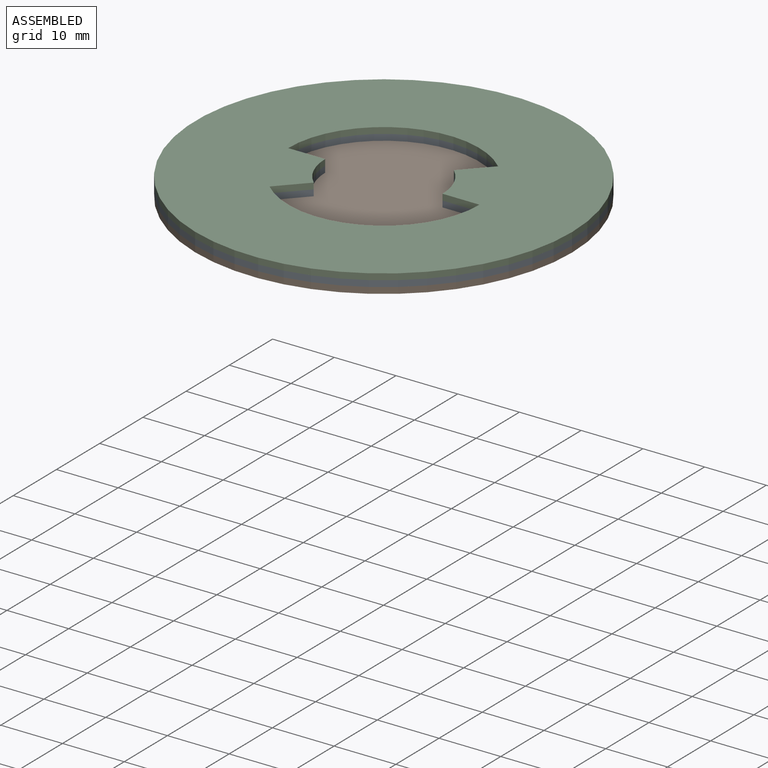
[diagram: assembled view]
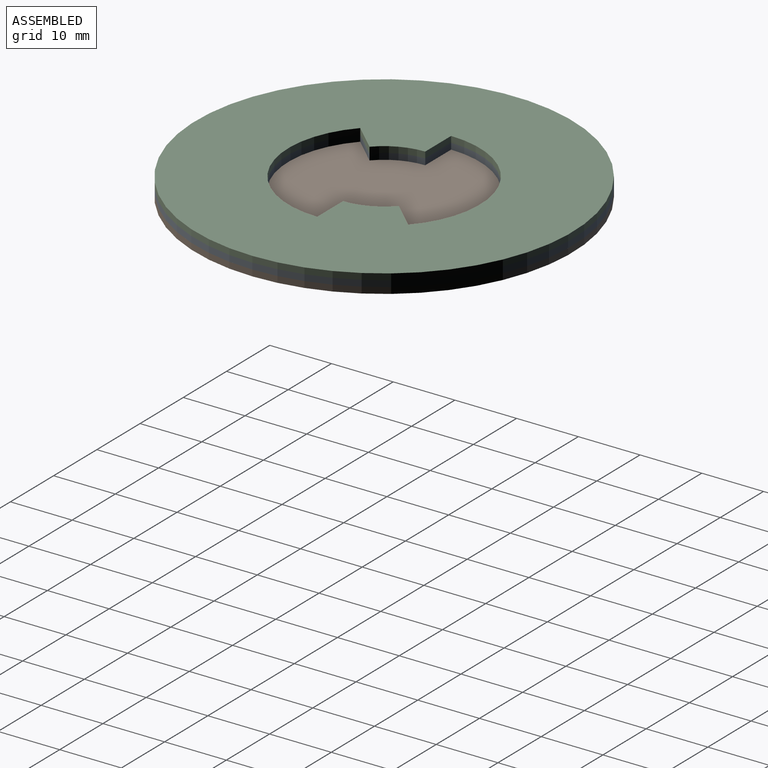
[diagram: assembled view, second angle]
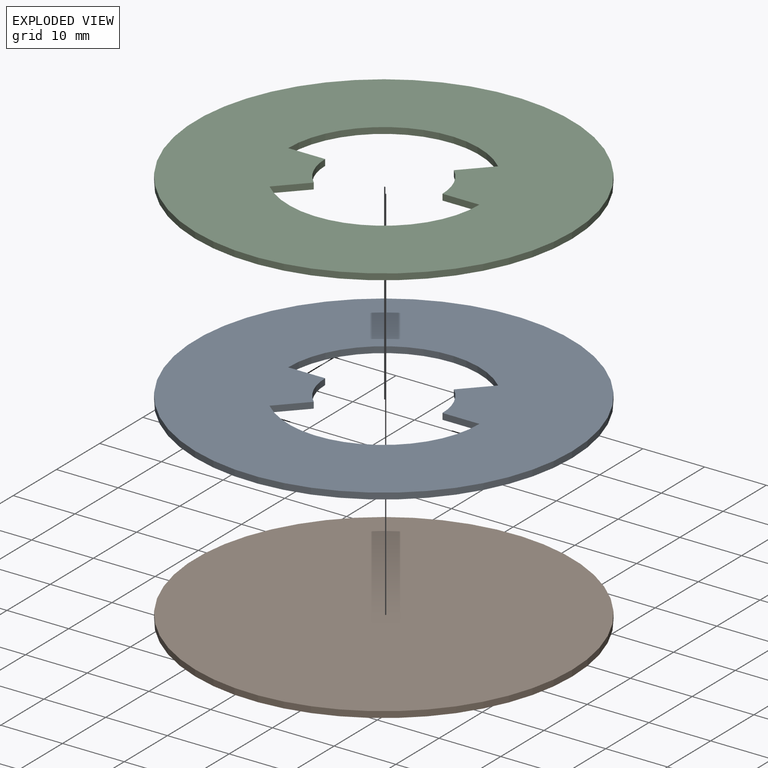
[diagram: exploded view]
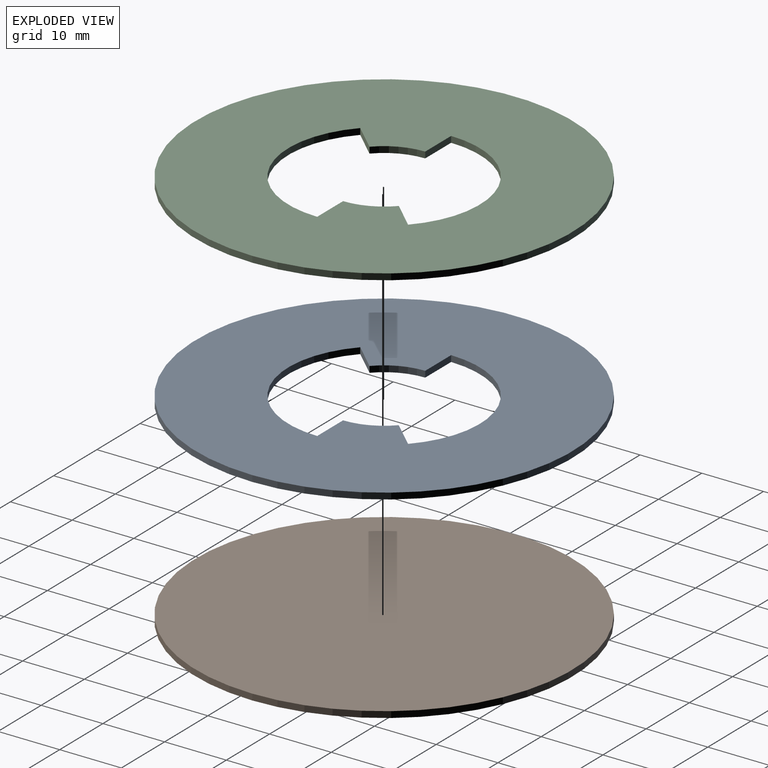
[diagram: exploded view, second angle]
ASSEMBLY  parts=3 mates=2
PART A: 11 faces, bbox 61x61x1 mm
  f0: cylinder r=15.5mm len=26.11mm, axis (0,0,-1), area 36mm2, adj f1,f7,f9,f10
  f1: plane 4.38x4.11mm, normal (0.73,-0.68,0), area 6mm2, adj f0,f2,f9,f10
  f2: cylinder r=9.5mm len=6.93mm, axis (0,0,-1), area 7.8mm2, adj f1,f3,f9,f10
  f3: plane 6x1mm, normal (0,1,0), area 6mm2, adj f2,f4,f9,f10
  f4: cylinder r=15.5mm len=26.11mm, axis (0,0,-1), area 36mm2, adj f3,f5,f9,f10
  f5: plane 4.38x4.11mm, normal (-0.73,0.68,0), area 6mm2, adj f4,f6,f9,f10
  f6: cylinder r=9.5mm len=6.93mm, axis (0,0,-1), area 7.8mm2, adj f5,f7,f9,f10
  f7: plane 6x1mm, normal (0,-1,0), area 6mm2, adj f0,f6,f9,f10
  f8: cylinder r=30.5mm len=61mm, axis (0,0,-1), area 191.6mm2, adj f9,f10
  f9: plane 61x61mm, normal (0,0,1), area 2290.3mm2, adj f0,f1,f2,f3,f4,f5,f6,f7
  f10: plane 61x61mm, normal (0,0,-1), area 2290.3mm2, adj f0,f1,f2,f3,f4,f5,f6,f7
PART B: 3 faces, bbox 61x61x1 mm
  f0: cylinder r=30.5mm len=61mm, axis (0,0,-1), area 191.6mm2, adj f1,f2
  f1: plane 61x61mm, normal (0,0,1), area 2922.5mm2, adj f0
  f2: plane 61x61mm, normal (0,0,-1), area 2922.5mm2, adj f0
PART C: same geometry as A
PLACE A t=(4.47,23.69,34)mm
PLACE B t=(4.47,23.69,33)mm
PLACE C t=(4.47,23.69,35)mm
MATE fastened B.f0 <-> A.f8  axis (0,0,1) through (4.47,23.69,34)mm
MATE fastened A.f9 <-> C.f10  axis (0,0,1) through (-2.03,16.76,35)mm
